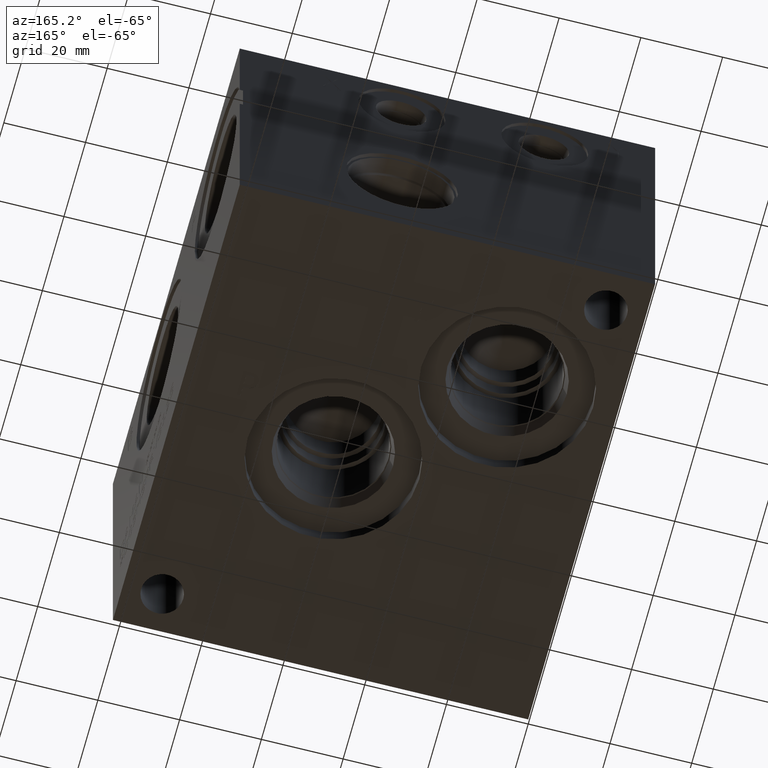
[diagram: clean part render]
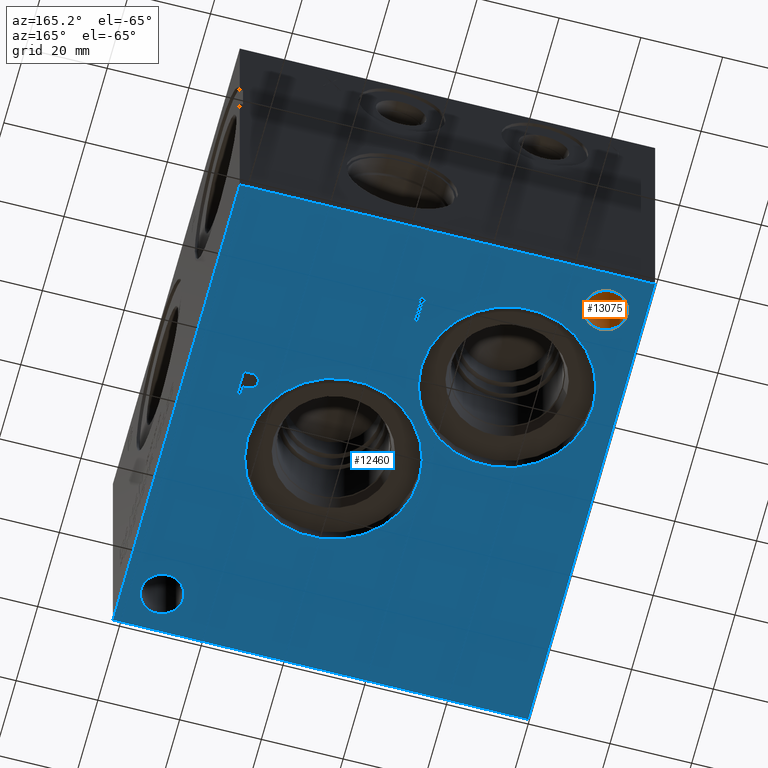
[diagram: same view with the hole feature highlighted: cylindrical wall and planar end face, labeled with their STEP entity ids]
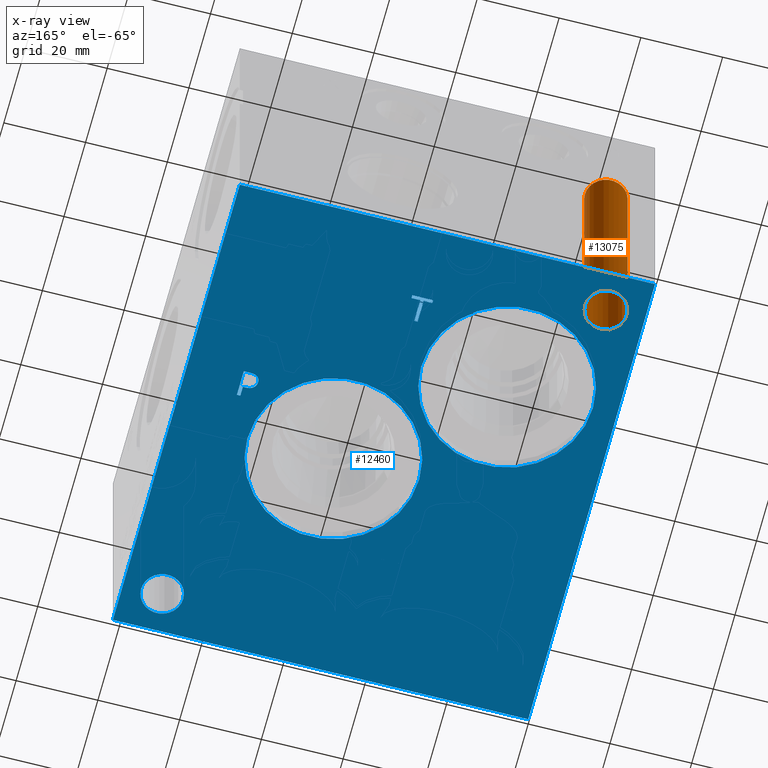
[diagram: x-ray of the same camera — body ghosted, the hole faces saturated]
A machine part, auxiliary view. The highlighted faces form one hole feature of diameter 10.3124 mm: the cylindrical wall (entity #13075, orange) and its adjacent planar end face (entity #12460, blue) — they share a circular edge in the B-rep.
The next image is the same camera in x-ray (body ghosted, the hole faces saturated) — the bore reads through the body.
Wall:
#74=CYLINDRICAL_SURFACE('',#13831,5.1562);
#149=CIRCLE('',#13138,5.1562);
#363=CIRCLE('',#13827,5.1562);
#1545=FACE_OUTER_BOUND('',#2284,.T.);
#2284=EDGE_LOOP('',(#11558,#11559,#11560,#11561));
#3556=LINE('',#22267,#4792);
#4792=VECTOR('',#16547,5.1562);
#5158=VERTEX_POINT('',#16981);
#6293=VERTEX_POINT('',#22258);
#6411=EDGE_CURVE('',#5158,#5158,#149,.T.);
#8081=EDGE_CURVE('',#6293,#6293,#363,.T.);
#8085=EDGE_CURVE('',#6293,#5158,#3556,.T.);
#11558=ORIENTED_EDGE('',*,*,#8081,.T.);
#11559=ORIENTED_EDGE('',*,*,#8085,.T.);
#11560=ORIENTED_EDGE('',*,*,#6411,.F.);
#11561=ORIENTED_EDGE('',*,*,#8085,.F.);
#13075=ADVANCED_FACE('',(#1545),#74,.F.);
#13138=AXIS2_PLACEMENT_3D('',#16982,#13988,#13989);
#13827=AXIS2_PLACEMENT_3D('',#22259,#16536,#16537);
#13831=AXIS2_PLACEMENT_3D('',#22266,#16545,#16546);
#13988=DIRECTION('center_axis',(0.,0.,1.));
#13989=DIRECTION('ref_axis',(1.,0.,0.));
#16536=DIRECTION('center_axis',(0.,0.,1.));
#16537=DIRECTION('ref_axis',(1.,0.,0.));
#16545=DIRECTION('center_axis',(0.,0.,1.));
#16546=DIRECTION('ref_axis',(1.,0.,0.));
#16547=DIRECTION('',(0.,0.,-1.));
#16981=CARTESIAN_POINT('',(4.3688,107.95,0.));
#16982=CARTESIAN_POINT('Origin',(9.525,107.95,0.));
#22258=CARTESIAN_POINT('',(4.3688,107.95,61.9252));
#22259=CARTESIAN_POINT('Origin',(9.525,107.95,61.9252));
#22266=CARTESIAN_POINT('Origin',(9.525,107.95,-96.801085617981));
#22267=CARTESIAN_POINT('',(4.3688,107.95,-96.801085617981));
End face:
#148=CIRCLE('',#13137,5.1562);
#149=CIRCLE('',#13138,5.1562);
#150=CIRCLE('',#13139,21.0185);
#151=CIRCLE('',#13140,21.0185);
#152=CIRCLE('',#13141,21.0185);
#153=CIRCLE('',#13142,21.0185);
#426=FACE_BOUND('',#1602,.T.);
#427=FACE_BOUND('',#1603,.T.);
#428=FACE_BOUND('',#1604,.T.);
#429=FACE_BOUND('',#1605,.T.);
#430=FACE_BOUND('',#1606,.T.);
#431=FACE_BOUND('',#1607,.T.);
#530=PLANE('',#13136);
#930=FACE_OUTER_BOUND('',#1601,.T.);
#1601=EDGE_LOOP('',(#8253,#8254,#8255,#8256));
#1602=EDGE_LOOP('',(#8257));
#1603=EDGE_LOOP('',(#8258));
#1604=EDGE_LOOP('',(#8259,#8260));
#1605=EDGE_LOOP('',(#8261,#8262));
#1606=EDGE_LOOP('',(#8263,#8264,#8265,#8266,#8267,#8268,#8269,#8270));
#1607=EDGE_LOOP('',(#8271,#8272,#8273,#8274,#8275,#8276,#8277,#8278,#8279));
#2365=LINE('',#16906,#3601);
#2368=LINE('',#16912,#3604);
#2371=LINE('',#16918,#3607);
#2374=LINE('',#16924,#3610);
#2377=LINE('',#16930,#3613);
#2381=LINE('',#16973,#3617);
#2382=LINE('',#16975,#3618);
#2383=LINE('',#16977,#3619);
#2384=LINE('',#16978,#3620);
#2385=LINE('',#16993,#3621);
#2386=LINE('',#16995,#3622);
#2387=LINE('',#16997,#3623);
#2388=LINE('',#16999,#3624);
#2389=LINE('',#17001,#3625);
#2390=LINE('',#17003,#3626);
#2391=LINE('',#17005,#3627);
#2392=LINE('',#17006,#3628);
#3601=VECTOR('',#13954,10.);
#3604=VECTOR('',#13959,10.);
#3607=VECTOR('',#13964,10.);
#3610=VECTOR('',#13969,10.);
#3613=VECTOR('',#13974,10.);
#3617=VECTOR('',#13982,10.);
#3618=VECTOR('',#13983,10.);
#3619=VECTOR('',#13984,10.);
#3620=VECTOR('',#13985,10.);
#3621=VECTOR('',#13998,10.);
#3622=VECTOR('',#13999,10.);
#3623=VECTOR('',#14000,10.);
#3624=VECTOR('',#14001,10.);
#3625=VECTOR('',#14002,10.);
#3626=VECTOR('',#14003,10.);
#3627=VECTOR('',#14004,10.);
#3628=VECTOR('',#14005,10.);
#4829=B_SPLINE_CURVE_WITH_KNOTS('',2,(#16873,#16874,#16875,#16876),
 .UNSPECIFIED.,.F.,.F.,(3,1,3),(0.,1.,2.),.UNSPECIFIED.);
#4831=B_SPLINE_CURVE_WITH_KNOTS('',2,(#16894,#16895,#16896,#16897),
 .UNSPECIFIED.,.F.,.F.,(3,1,3),(0.,1.,2.),.UNSPECIFIED.);
#4833=B_SPLINE_CURVE_WITH_KNOTS('',2,(#16943,#16944,#16945,#16946),
 .UNSPECIFIED.,.F.,.F.,(3,1,3),(0.,1.,2.),.UNSPECIFIED.);
#4835=B_SPLINE_CURVE_WITH_KNOTS('',2,(#16961,#16962,#16963,#16964),
 .UNSPECIFIED.,.F.,.F.,(3,1,3),(0.,1.,2.),.UNSPECIFIED.);
#5135=VERTEX_POINT('',#16871);
#5136=VERTEX_POINT('',#16872);
#5139=VERTEX_POINT('',#16893);
#5141=VERTEX_POINT('',#16905);
#5143=VERTEX_POINT('',#16911);
#5145=VERTEX_POINT('',#16917);
#5147=VERTEX_POINT('',#16923);
#5149=VERTEX_POINT('',#16929);
#5151=VERTEX_POINT('',#16942);
#5153=VERTEX_POINT('',#16971);
#5154=VERTEX_POINT('',#16972);
#5155=VERTEX_POINT('',#16974);
#5156=VERTEX_POINT('',#16976);
#5157=VERTEX_POINT('',#16979);
#5158=VERTEX_POINT('',#16981);
#5159=VERTEX_POINT('',#16983);
#5160=VERTEX_POINT('',#16984);
#5161=VERTEX_POINT('',#16987);
#5162=VERTEX_POINT('',#16988);
#5163=VERTEX_POINT('',#16991);
#5164=VERTEX_POINT('',#16992);
#5165=VERTEX_POINT('',#16994);
#5166=VERTEX_POINT('',#16996);
#5167=VERTEX_POINT('',#16998);
#5168=VERTEX_POINT('',#17000);
#5169=VERTEX_POINT('',#17002);
#5170=VERTEX_POINT('',#17004);
#6379=EDGE_CURVE('',#5135,#5136,#4829,.T.);
#6383=EDGE_CURVE('',#5139,#5135,#4831,.T.);
#6386=EDGE_CURVE('',#5141,#5139,#2365,.T.);
#6389=EDGE_CURVE('',#5143,#5141,#2368,.T.);
#6392=EDGE_CURVE('',#5145,#5143,#2371,.T.);
#6395=EDGE_CURVE('',#5147,#5145,#2374,.T.);
#6398=EDGE_CURVE('',#5149,#5147,#2377,.T.);
#6401=EDGE_CURVE('',#5151,#5149,#4833,.T.);
#6404=EDGE_CURVE('',#5136,#5151,#4835,.T.);
#6406=EDGE_CURVE('',#5153,#5154,#2381,.T.);
#6407=EDGE_CURVE('',#5155,#5153,#2382,.T.);
#6408=EDGE_CURVE('',#5156,#5155,#2383,.T.);
#6409=EDGE_CURVE('',#5154,#5156,#2384,.T.);
#6410=EDGE_CURVE('',#5157,#5157,#148,.T.);
#6411=EDGE_CURVE('',#5158,#5158,#149,.T.);
#6412=EDGE_CURVE('',#5159,#5160,#150,.T.);
#6413=EDGE_CURVE('',#5160,#5159,#151,.T.);
#6414=EDGE_CURVE('',#5161,#5162,#152,.T.);
#6415=EDGE_CURVE('',#5162,#5161,#153,.T.);
#6416=EDGE_CURVE('',#5163,#5164,#2385,.T.);
#6417=EDGE_CURVE('',#5164,#5165,#2386,.T.);
#6418=EDGE_CURVE('',#5165,#5166,#2387,.T.);
#6419=EDGE_CURVE('',#5166,#5167,#2388,.T.);
#6420=EDGE_CURVE('',#5167,#5168,#2389,.T.);
#6421=EDGE_CURVE('',#5168,#5169,#2390,.T.);
#6422=EDGE_CURVE('',#5169,#5170,#2391,.T.);
#6423=EDGE_CURVE('',#5170,#5163,#2392,.T.);
#8253=ORIENTED_EDGE('',*,*,#6406,.F.);
#8254=ORIENTED_EDGE('',*,*,#6407,.F.);
#8255=ORIENTED_EDGE('',*,*,#6408,.F.);
#8256=ORIENTED_EDGE('',*,*,#6409,.F.);
#8257=ORIENTED_EDGE('',*,*,#6410,.T.);
#8258=ORIENTED_EDGE('',*,*,#6411,.T.);
#8259=ORIENTED_EDGE('',*,*,#6412,.T.);
#8260=ORIENTED_EDGE('',*,*,#6413,.T.);
#8261=ORIENTED_EDGE('',*,*,#6414,.T.);
#8262=ORIENTED_EDGE('',*,*,#6415,.T.);
#8263=ORIENTED_EDGE('',*,*,#6416,.T.);
#8264=ORIENTED_EDGE('',*,*,#6417,.T.);
#8265=ORIENTED_EDGE('',*,*,#6418,.T.);
#8266=ORIENTED_EDGE('',*,*,#6419,.T.);
#8267=ORIENTED_EDGE('',*,*,#6420,.T.);
#8268=ORIENTED_EDGE('',*,*,#6421,.T.);
#8269=ORIENTED_EDGE('',*,*,#6422,.T.);
#8270=ORIENTED_EDGE('',*,*,#6423,.T.);
#8271=ORIENTED_EDGE('',*,*,#6379,.T.);
#8272=ORIENTED_EDGE('',*,*,#6404,.T.);
#8273=ORIENTED_EDGE('',*,*,#6401,.T.);
#8274=ORIENTED_EDGE('',*,*,#6398,.T.);
#8275=ORIENTED_EDGE('',*,*,#6395,.T.);
#8276=ORIENTED_EDGE('',*,*,#6392,.T.);
#8277=ORIENTED_EDGE('',*,*,#6389,.T.);
#8278=ORIENTED_EDGE('',*,*,#6386,.T.);
#8279=ORIENTED_EDGE('',*,*,#6383,.T.);
#12460=ADVANCED_FACE('',(#930,#426,#427,#428,#429,#430,#431),#530,.F.);
#13136=AXIS2_PLACEMENT_3D('',#16970,#13980,#13981);
#13137=AXIS2_PLACEMENT_3D('',#16980,#13986,#13987);
#13138=AXIS2_PLACEMENT_3D('',#16982,#13988,#13989);
#13139=AXIS2_PLACEMENT_3D('',#16985,#13990,#13991);
#13140=AXIS2_PLACEMENT_3D('',#16986,#13992,#13993);
#13141=AXIS2_PLACEMENT_3D('',#16989,#13994,#13995);
#13142=AXIS2_PLACEMENT_3D('',#16990,#13996,#13997);
#13954=DIRECTION('',(-1.,0.,0.));
#13959=DIRECTION('',(-2.79741238752512E-15,1.,0.));
#13964=DIRECTION('',(1.,0.,0.));
#13969=DIRECTION('',(0.,-1.,0.));
#13974=DIRECTION('',(1.,0.,0.));
#13980=DIRECTION('center_axis',(0.,0.,1.));
#13981=DIRECTION('ref_axis',(1.,0.,0.));
#13982=DIRECTION('',(1.,0.,0.));
#13983=DIRECTION('',(0.,-1.,0.));
#13984=DIRECTION('',(-1.,0.,0.));
#13985=DIRECTION('',(0.,1.,0.));
#13986=DIRECTION('center_axis',(0.,0.,1.));
#13987=DIRECTION('ref_axis',(1.,0.,0.));
#13988=DIRECTION('center_axis',(0.,0.,1.));
#13989=DIRECTION('ref_axis',(1.,0.,0.));
#13990=DIRECTION('center_axis',(0.,0.,1.));
#13991=DIRECTION('ref_axis',(1.,0.,0.));
#13992=DIRECTION('center_axis',(0.,0.,1.));
#13993=DIRECTION('ref_axis',(1.,0.,0.));
#13994=DIRECTION('center_axis',(0.,0.,1.));
#13995=DIRECTION('ref_axis',(1.,0.,0.));
#13996=DIRECTION('center_axis',(0.,0.,1.));
#13997=DIRECTION('ref_axis',(1.,0.,0.));
#13998=DIRECTION('',(1.,0.,0.));
#13999=DIRECTION('',(-3.17280044688052E-15,1.,0.));
#14000=DIRECTION('',(1.,0.,0.));
#14001=DIRECTION('',(0.,1.,0.));
#14002=DIRECTION('',(-1.,-3.47984565141734E-15,0.));
#14003=DIRECTION('',(0.,-1.,0.));
#14004=DIRECTION('',(1.,0.,0.));
#14005=DIRECTION('',(3.17280044688052E-15,-1.,0.));
#16871=CARTESIAN_POINT('',(84.9994327976406,70.2475181439707,0.));
#16872=CARTESIAN_POINT('',(84.242990345468,68.7294873726039,0.));
#16873=CARTESIAN_POINT('Ctrl Pts',(84.9994327976406,70.2475181439707,0.));
#16874=CARTESIAN_POINT('Ctrl Pts',(84.6443679731514,70.0056623939564,0.));
#16875=CARTESIAN_POINT('Ctrl Pts',(84.242990345468,69.2595116758269,0.));
#16876=CARTESIAN_POINT('Ctrl Pts',(84.242990345468,68.7294873726039,0.));
#16893=CARTESIAN_POINT('',(86.6615478456117,70.6437499046326,0.));
#16894=CARTESIAN_POINT('Ctrl Pts',(86.6615478456117,70.6437499046326,0.));
#16895=CARTESIAN_POINT('Ctrl Pts',(86.0955024732376,70.6437499046326,0.));
#16896=CARTESIAN_POINT('Ctrl Pts',(85.3030389519139,70.4584986918556,0.));
#16897=CARTESIAN_POINT('Ctrl Pts',(84.9994327976406,70.2475181439707,0.));
#16905=CARTESIAN_POINT('',(88.2567666223022,70.6437499046326,0.));
#16906=CARTESIAN_POINT('',(69.5283833111511,70.6437499046326,0.));
#16911=CARTESIAN_POINT('',(88.2567666223022,64.29375,0.));
#16912=CARTESIAN_POINT('',(88.2567666223022,61.5156250000001,0.));
#16917=CARTESIAN_POINT('',(87.4128444307627,64.29375,0.));
#16918=CARTESIAN_POINT('',(69.1064222153814,64.29375,0.));
#16923=CARTESIAN_POINT('',(87.4128444307627,66.6608488299279,0.));
#16924=CARTESIAN_POINT('',(87.4128444307627,62.6991744149639,0.));
#16929=CARTESIAN_POINT('',(86.6975689147628,66.6608488299279,0.));
#16930=CARTESIAN_POINT('',(68.7487844573814,66.6608488299279,0.));
#16942=CARTESIAN_POINT('',(84.7987439837989,67.3195198086904,0.));
#16943=CARTESIAN_POINT('Ctrl Pts',(84.7987439837989,67.3195198086904,0.));
#16944=CARTESIAN_POINT('Ctrl Pts',(85.1280794731802,66.9953301863307,0.));
#16945=CARTESIAN_POINT('Ctrl Pts',(86.0183144679139,66.6608488299279,0.));
#16946=CARTESIAN_POINT('Ctrl Pts',(86.6975689147628,66.6608488299279,0.));
#16961=CARTESIAN_POINT('Ctrl Pts',(84.242990345468,68.7294873726039,0.));
#16962=CARTESIAN_POINT('Ctrl Pts',(84.242990345468,68.3178180108774,0.));
#16963=CARTESIAN_POINT('Ctrl Pts',(84.5363047656982,67.5768131597695,0.));
#16964=CARTESIAN_POINT('Ctrl Pts',(84.7987439837989,67.3195198086904,0.));
#16970=CARTESIAN_POINT('Origin',(50.8,58.7375,0.));
#16971=CARTESIAN_POINT('',(0.,0.,0.));
#16972=CARTESIAN_POINT('',(101.6,0.,0.));
#16973=CARTESIAN_POINT('',(0.,0.,0.));
#16974=CARTESIAN_POINT('',(0.,117.475,0.));
#16975=CARTESIAN_POINT('',(0.,117.475,0.));
#16976=CARTESIAN_POINT('',(101.6,117.475,0.));
#16977=CARTESIAN_POINT('',(101.6,117.475,0.));
#16978=CARTESIAN_POINT('',(101.6,0.,0.));
#16979=CARTESIAN_POINT('',(86.9188,9.525,0.));
#16980=CARTESIAN_POINT('Origin',(92.075,9.525,0.));
#16981=CARTESIAN_POINT('',(4.3688,107.95,0.));
#16982=CARTESIAN_POINT('Origin',(9.525,107.95,0.));
#16983=CARTESIAN_POINT('',(47.9933,82.55,0.));
#16984=CARTESIAN_POINT('',(5.9563,82.55,0.));
#16985=CARTESIAN_POINT('Origin',(26.9748,82.55,0.));
#16986=CARTESIAN_POINT('Origin',(26.9748,82.55,0.));
#16987=CARTESIAN_POINT('',(82.9437,53.975,0.));
#16988=CARTESIAN_POINT('',(40.9067,53.975,0.));
#16989=CARTESIAN_POINT('Origin',(61.9252,53.975,0.));
#16990=CARTESIAN_POINT('Origin',(61.9252,53.975,0.));
#16991=CARTESIAN_POINT('',(51.799584728547,93.6625,0.));
#16992=CARTESIAN_POINT('',(52.6435069200865,93.6625,0.));
#16993=CARTESIAN_POINT('',(51.2997923642735,93.6625,0.));
#16994=CARTESIAN_POINT('',(52.6435069200865,99.2612033194816,0.));
#16995=CARTESIAN_POINT('',(52.6435069200866,76.2,0.));
#16996=CARTESIAN_POINT('',(54.7738958670216,99.2612033194816,0.));
#16997=CARTESIAN_POINT('',(51.7217534600432,99.2612033194816,0.));
#16998=CARTESIAN_POINT('',(54.7738958670216,100.012499904633,0.));
#16999=CARTESIAN_POINT('',(54.7738958670215,78.9993516597408,0.));
#17000=CARTESIAN_POINT('',(49.6691957816119,100.012499904633,0.));
#17001=CARTESIAN_POINT('',(52.7869479335107,100.012499904633,0.));
#17002=CARTESIAN_POINT('',(49.6691957816119,99.2612033194816,0.));
#17003=CARTESIAN_POINT('',(49.6691957816119,79.3749999523163,0.));
#17004=CARTESIAN_POINT('',(51.799584728547,99.2612033194816,0.));
#17005=CARTESIAN_POINT('',(50.234597890806,99.2612033194816,0.));
#17006=CARTESIAN_POINT('',(51.799584728547,78.9993516597408,0.));